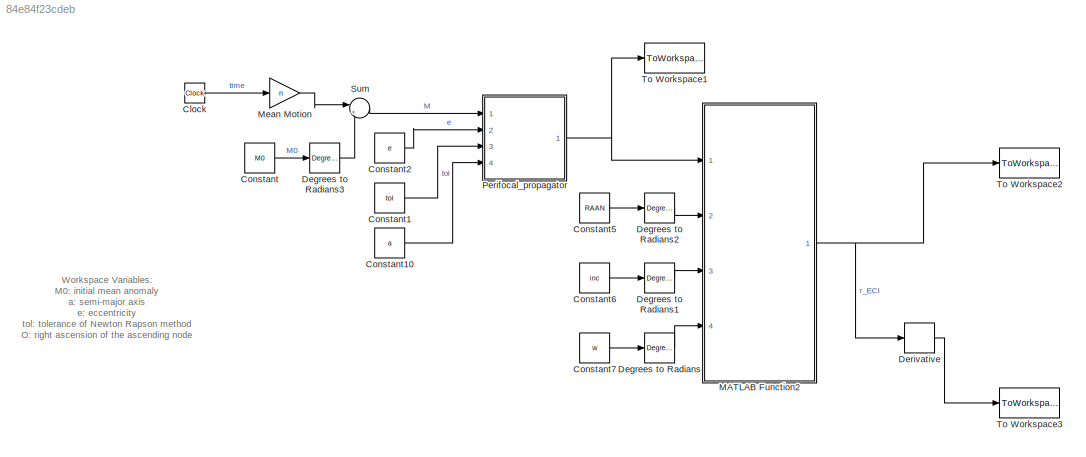
MODEL slx_84e84f23cdeb
KIND model
CONFIG AbsTol = auto
CONFIG EnableMultiTasking = off
CONFIG FixedStep = stepSize
CONFIG MaxStep = auto
CONFIG MinStep = auto
CONFIG RelTol = 1e-3
CONFIG SampleTimeConstraint = Unconstrained
CONFIG Solver = FixedStepAuto
CONFIG SolverName = FixedStepAuto
CONFIG StartTime = 0.0
CONFIG StopTime = stopTime
BLOCK [Clock] Clock
BLOCK [Constant] Constant
  Value = M0
BLOCK [Constant] Constant1
  Value = tol
BLOCK [Constant] Constant10
  Value = a
BLOCK [Constant] Constant2
  Value = e
BLOCK [Constant] Constant5
  Value = RAAN
BLOCK [Constant] Constant6
  Value = inc
BLOCK [Constant] Constant7
  Value = w
BLOCK [Reference] Degrees to Radians  REF=simulink_extras/Transformations/Degrees to
Radians
  Ports = [1, 1]
  SourceBlock = simulink_extras/Transformations/Degrees to\nRadians
  SourceProductBaseCode = SL
  SourceProductName = Simulink
  SourceType = DegreesToRadians
BLOCK [Reference] Degrees to Radians1  REF=simulink_extras/Transformations/Degrees to
Radians
  Ports = [1, 1]
  SourceBlock = simulink_extras/Transformations/Degrees to\nRadians
  SourceProductBaseCode = SL
  SourceProductName = Simulink
  SourceType = DegreesToRadians
BLOCK [Reference] Degrees to Radians2  REF=simulink_extras/Transformations/Degrees to
Radians
  Ports = [1, 1]
  SourceBlock = simulink_extras/Transformations/Degrees to\nRadians
  SourceProductBaseCode = SL
  SourceProductName = Simulink
  SourceType = DegreesToRadians
BLOCK [Reference] Degrees to Radians3  REF=simulink_extras/Transformations/Degrees to
Radians
  Ports = [1, 1]
  SourceBlock = simulink_extras/Transformations/Degrees to\nRadians
  SourceProductBaseCode = SL
  SourceProductName = Simulink
  SourceType = DegreesToRadians
BLOCK [Derivative] Derivative
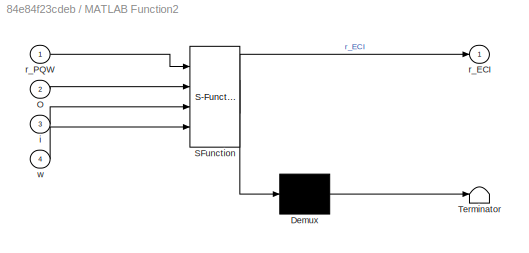
BLOCK [SubSystem] MATLAB Function2
  ErrorFcn = Stateflow.Translate.translate
  PermitHierarchicalResolution = ExplicitOnly
  Ports = [4, 1]
  RequestExecContextInheritance = off
  SFBlockType = MATLAB Function
  TreatAsAtomicUnit = on
  Variant = off
BLOCK [Demux] MATLAB Function2/ Demux 
  Outputs = 1
  Ports = [1, 1]
BLOCK [S-Function] MATLAB Function2/ SFunction 
  EnableBusSupport = on
  FunctionName = sf_sfun
  PortCounts = [4 2]
  Ports = [4, 2]
  SFcnIsStateOwnerBlock = off
  SFunctionDeploymentMode = off
  Tag = Stateflow S-Function Orbit_Sim_ECEF 3
BLOCK [Terminator] MATLAB Function2/ Terminator 
BLOCK [Inport] MATLAB Function2/O
  IconDisplay = Port number
  Port = 2
BLOCK [Inport] MATLAB Function2/i
  IconDisplay = Port number
  Port = 3
BLOCK [Outport] MATLAB Function2/r_ECI
  IconDisplay = Port number
BLOCK [Inport] MATLAB Function2/r_PQW
  IconDisplay = Port number
BLOCK [Inport] MATLAB Function2/w
  IconDisplay = Port number
  Port = 4
BLOCK [Gain] Mean Motion
  Gain = n
  OutDataTypeStr = Inherit: Inherit via internal rule
  ParamDataTypeStr = Inherit: Inherit via internal rule
  SaturateOnIntegerOverflow = off
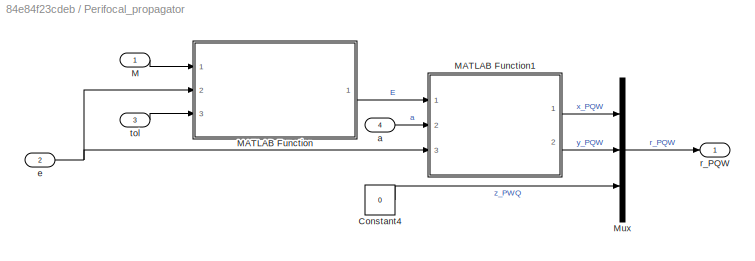
BLOCK [SubSystem] Perifocal_propagator
  Ports = [4, 1]
  RequestExecContextInheritance = off
  Variant = off
BLOCK [Constant] Perifocal_propagator/Constant4
  Value = 0
BLOCK [Inport] Perifocal_propagator/M
  IconDisplay = Port number
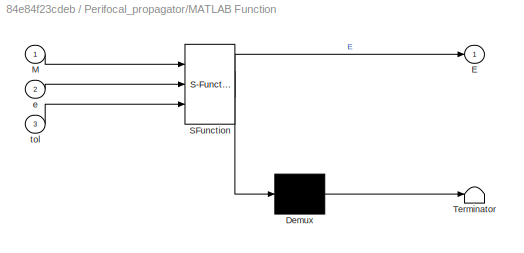
BLOCK [SubSystem] Perifocal_propagator/MATLAB Function
  ErrorFcn = Stateflow.Translate.translate
  PermitHierarchicalResolution = ExplicitOnly
  Ports = [3, 1]
  RequestExecContextInheritance = off
  SFBlockType = MATLAB Function
  TreatAsAtomicUnit = on
  Variant = off
BLOCK [Demux] Perifocal_propagator/MATLAB Function/ Demux 
  Outputs = 1
  Ports = [1, 1]
BLOCK [S-Function] Perifocal_propagator/MATLAB Function/ SFunction 
  EnableBusSupport = on
  FunctionName = sf_sfun
  PortCounts = [3 2]
  Ports = [3, 2]
  SFcnIsStateOwnerBlock = off
  SFunctionDeploymentMode = off
  Tag = Stateflow S-Function Orbit_Sim_ECEF 2
BLOCK [Terminator] Perifocal_propagator/MATLAB Function/ Terminator 
BLOCK [Outport] Perifocal_propagator/MATLAB Function/E
  IconDisplay = Port number
BLOCK [Inport] Perifocal_propagator/MATLAB Function/M
  IconDisplay = Port number
BLOCK [Inport] Perifocal_propagator/MATLAB Function/e
  IconDisplay = Port number
  Port = 2
BLOCK [Inport] Perifocal_propagator/MATLAB Function/tol
  IconDisplay = Port number
  Port = 3
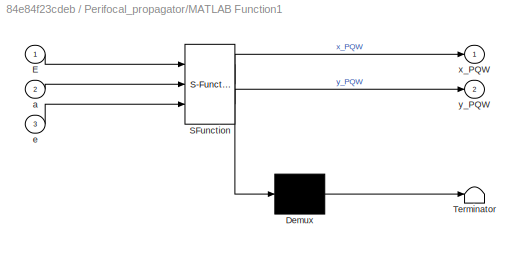
BLOCK [SubSystem] Perifocal_propagator/MATLAB Function1
  ErrorFcn = Stateflow.Translate.translate
  PermitHierarchicalResolution = ExplicitOnly
  Ports = [3, 2]
  RequestExecContextInheritance = off
  SFBlockType = MATLAB Function
  TreatAsAtomicUnit = on
  Variant = off
BLOCK [Demux] Perifocal_propagator/MATLAB Function1/ Demux 
  Outputs = 1
  Ports = [1, 1]
BLOCK [S-Function] Perifocal_propagator/MATLAB Function1/ SFunction 
  EnableBusSupport = on
  FunctionName = sf_sfun
  PortCounts = [3 3]
  Ports = [3, 3]
  SFcnIsStateOwnerBlock = off
  SFunctionDeploymentMode = off
  Tag = Stateflow S-Function Orbit_Sim_ECEF 1
BLOCK [Terminator] Perifocal_propagator/MATLAB Function1/ Terminator 
BLOCK [Inport] Perifocal_propagator/MATLAB Function1/E
  IconDisplay = Port number
BLOCK [Inport] Perifocal_propagator/MATLAB Function1/a
  IconDisplay = Port number
  Port = 2
BLOCK [Inport] Perifocal_propagator/MATLAB Function1/e
  IconDisplay = Port number
  Port = 3
BLOCK [Outport] Perifocal_propagator/MATLAB Function1/x_PQW
  IconDisplay = Port number
BLOCK [Outport] Perifocal_propagator/MATLAB Function1/y_PQW
  IconDisplay = Port number
  Port = 2
BLOCK [Mux] Perifocal_propagator/Mux
  DisplayOption = bar
  Inputs = 3
  Ports = [3, 1]
BLOCK [Inport] Perifocal_propagator/a
  IconDisplay = Port number
  Port = 4
BLOCK [Inport] Perifocal_propagator/e
  IconDisplay = Port number
  Port = 2
BLOCK [Outport] Perifocal_propagator/r_PQW
  IconDisplay = Port number
BLOCK [Inport] Perifocal_propagator/tol
  IconDisplay = Port number
  Port = 3
BLOCK [Sum] Sum
  IconShape = round
  InputSameDT = off
  Inputs = |++
  OutDataTypeStr = Inherit: Inherit via internal rule
  Ports = [2, 1]
  SaturateOnIntegerOverflow = off
BLOCK [ToWorkspace] To Workspace1
  FixptAsFi = on
  MaxDataPoints = inf
  Ports = [1]
  SampleTime = -1
  Save2DSignal = 3-D array (concatenate along third dimension)
  VariableName = r_pqw
BLOCK [ToWorkspace] To Workspace2
  FixptAsFi = on
  MaxDataPoints = inf
  Ports = [1]
  SampleTime = -1
  Save2DSignal = 3-D array (concatenate along third dimension)
  VariableName = r_eci2
BLOCK [ToWorkspace] To Workspace3
  FixptAsFi = on
  MaxDataPoints = inf
  Ports = [1]
  SampleTime = -1
  Save2DSignal = 3-D array (concatenate along third dimension)
  VariableName = v_eci2
ANNOTATION (root): Workspace Variables: M0: initial mean anomaly a: semi-major axis e: eccentricity tol: tolerance of Newton Rapson method O: right ascension of the ascending node i: inclination w: argument of perigee n: mean motion DD: date MM: month number YYYY: year dUT1: leap seconds *NOTE: angles are in radians
LINE Clock:1 -> Mean Motion:1
LINE Constant10:1 -> Perifocal_propagator:4
LINE Constant1:1 -> Perifocal_propagator:3
LINE Constant2:1 -> Perifocal_propagator:2
LINE Constant5:1 -> Degrees to Radians2:1
LINE Constant6:1 -> Degrees to Radians1:1
LINE Constant7:1 -> Degrees to Radians:1
LINE Constant:1 -> Degrees to Radians3:1
LINE Degrees to Radians1:1 -> MATLAB Function2:3
LINE Degrees to Radians2:1 -> MATLAB Function2:2
LINE Degrees to Radians3:1 -> Sum:2
LINE Degrees to Radians:1 -> MATLAB Function2:4
LINE Derivative:1 -> To Workspace3:1
NET MATLAB Function2:1 -> Derivative:1, To Workspace2:1
LINE Mean Motion:1 -> Sum:1
LINE Perifocal_propagator/Constant4:1 -> Perifocal_propagator/Mux:3
LINE Perifocal_propagator/M:1 -> Perifocal_propagator/MATLAB Function:1
LINE Perifocal_propagator/MATLAB Function1:1 -> Perifocal_propagator/Mux:1
LINE Perifocal_propagator/MATLAB Function1:2 -> Perifocal_propagator/Mux:2
LINE Perifocal_propagator/MATLAB Function:1 -> Perifocal_propagator/MATLAB Function1:1
LINE Perifocal_propagator/Mux:1 -> Perifocal_propagator/r_PQW:1
LINE Perifocal_propagator/a:1 -> Perifocal_propagator/MATLAB Function1:2
NET Perifocal_propagator/e:1 -> Perifocal_propagator/MATLAB Function1:3, Perifocal_propagator/MATLAB Function:2
LINE Perifocal_propagator/tol:1 -> Perifocal_propagator/MATLAB Function:3
NET Perifocal_propagator:1 -> MATLAB Function2:1, To Workspace1:1
LINE Sum:1 -> Perifocal_propagator:1
note: NET lines group one-source signal fan-out (src -> all destinations, sorted); 1:1 wires keep LINE
CHART Perifocal_propagator/MATLAB Function1 states=1 transitions=1
  STATE_LABEL 'eML_blk_kernel()'
  STATE_LABEL 'SCRIPT:\nfunction [x_PQW, y_PQW] = E2Pos(E, a, e)\n\n% Compute position in perifocal coordinates\n%\n% Inputs\n% ------\n% E         Eccentric anomaly\n% a         semi-major axis\n%\n% Outputs\n% -------\n% x         x position on orbital plane\n% y         y position on orbital plane\n\n% semi-latus rectum\np = a*(1 - e^2);\n\n% Compute true anomaly from eccentric anomaly\ncos_nu = (cos(E) - e) / (1 - e*cos(E));\ns...<+191ch>'
CHART Perifocal_propagator/MATLAB Function states=1 transitions=1
  STATE_LABEL 'eML_blk_kernel()'
  STATE_LABEL 'SCRIPT:\nfunction E = MeanAnom2EccAnom(M, e, tol) \n\n% Compute eccentric anomaly from mean anomaly\n%\n% Inputs\n% ------\n% M         mean anomaly [rad]\n% e         eccentricity\n% tol       tolerance\n%\n% Outputs\n% -------\n% E         Eccentric anomaly [rad]\n% v         velocity vector\n\n% Check edge cases\nif( M == pi || M == 0)\n    E = M;\n    return\nend\n\n% initial guess\nif( M > pi )\n    E = M - e/2;\nels...<+297ch>'
CHART MATLAB Function2 states=1 transitions=1
  STATE_LABEL 'eML_blk_kernel()'
  STATE_LABEL 'SCRIPT:\nfunction r_ECI = PQW2ECI(r_PQW, O, i, w)\n\n% Transform vector in perifocal to ECI\n%\n% Inputs\n% ------\n% r_PQW     position in perifocal coordinates\n% i         inclination [rad]\n% O       \tright ascension of ascending node [rad]\n% w         argument of pariapsis [rad]\n%\n% Outputs\n% -------\n% r_ECI     position in ECI coordinates\n\n% Compute rotation matrix from PQW to ECI (3-1-3 Euler rots)\n...<+369ch>'
